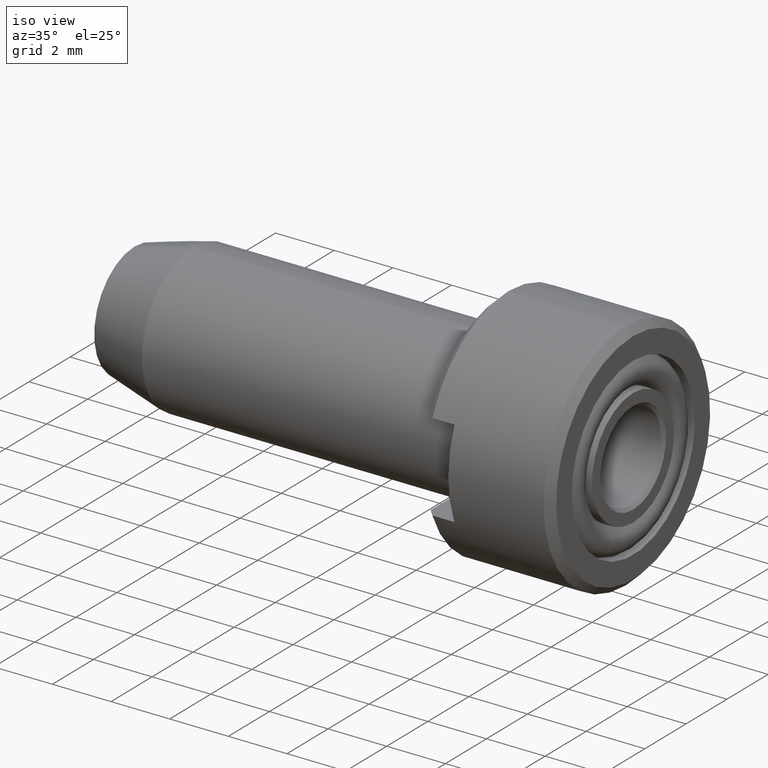
[diagram: clean part render]
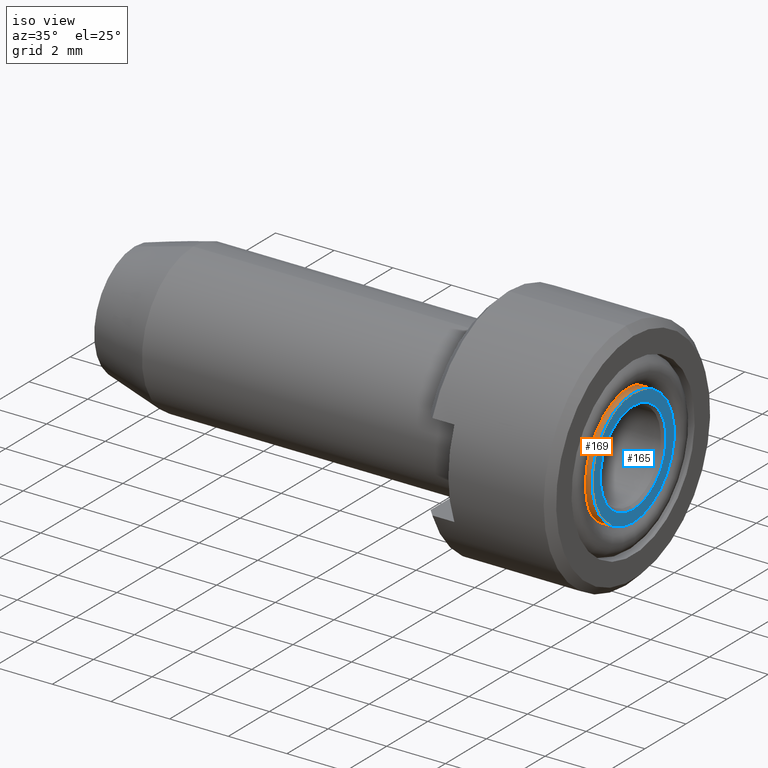
[diagram: same view with the hole feature highlighted: cylindrical wall and planar end face, labeled with their STEP entity ids]
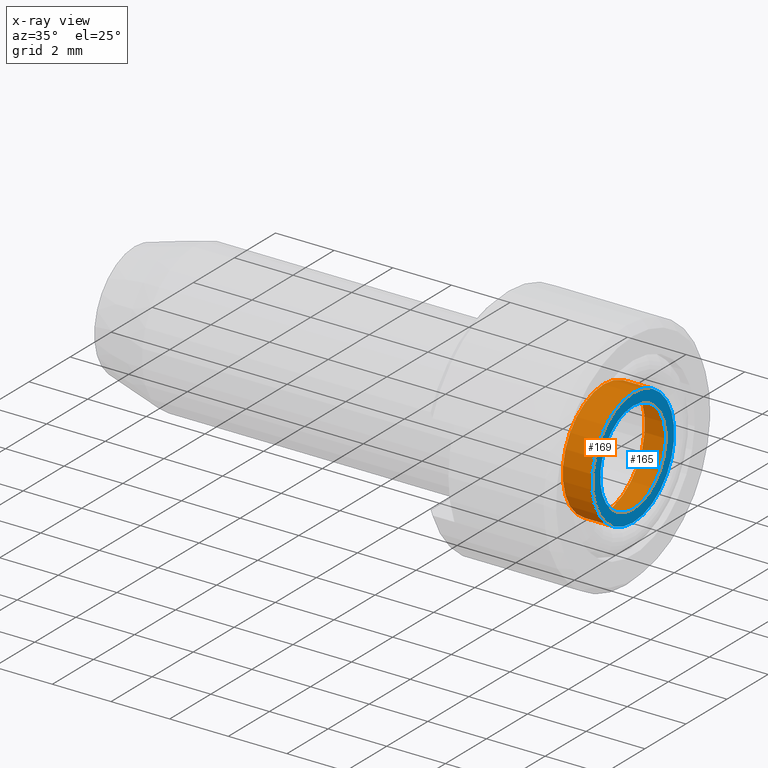
[diagram: x-ray of the same camera — body ghosted, the hole faces saturated]
A machine part, iso view. The highlighted faces form one hole feature of diameter 4 mm: the cylindrical wall (entity #169, orange) and its adjacent planar end face (entity #165, blue) — they share a circular edge in the B-rep.
The next image is the same camera in x-ray (body ghosted, the hole faces saturated) — the bore reads through the body.
Wall:
#169 = ADVANCED_FACE( '', ( #306, #307 ), #308, .T. );
#306 = FACE_OUTER_BOUND( '', #440, .T. );
#307 = FACE_OUTER_BOUND( '', #441, .T. );
#308 = CYLINDRICAL_SURFACE( '', #442, 2.00000000000000 );
#440 = EDGE_LOOP( '', ( #626 ) );
#441 = EDGE_LOOP( '', ( #627 ) );
#442 = AXIS2_PLACEMENT_3D( '', #628, #629, #630 );
#626 = ORIENTED_EDGE( '', *, *, #794, .T. );
#627 = ORIENTED_EDGE( '', *, *, #763, .F. );
#628 = CARTESIAN_POINT( '', ( -60.0000000000000, 0.000000000000000, 0.000000000000000 ) );
#629 = DIRECTION( '', ( 1.00000000000000, -0.000000000000000, -0.000000000000000 ) );
#630 = DIRECTION( '', ( 0.000000000000000, 0.000000000000000, 1.00000000000000 ) );
#763 = EDGE_CURVE( '', #859, #859, #860, .T. );
#794 = EDGE_CURVE( '', #908, #908, #909, .T. );
#859 = VERTEX_POINT( '', #990 );
#860 = CIRCLE( '', #991, 2.00000000000000 );
#908 = VERTEX_POINT( '', #1055 );
#909 = CIRCLE( '', #1056, 2.00000000000000 );
#990 = CARTESIAN_POINT( '', ( -1.00000000000000, 0.000000000000000, 2.00000000000000 ) );
#991 = AXIS2_PLACEMENT_3D( '', #1127, #1128, #1129 );
#1055 = CARTESIAN_POINT( '', ( 0.000000000000000, 0.000000000000000, 2.00000000000000 ) );
#1056 = AXIS2_PLACEMENT_3D( '', #1173, #1174, #1175 );
#1127 = CARTESIAN_POINT( '', ( -1.00000000000000, 0.000000000000000, 0.000000000000000 ) );
#1128 = DIRECTION( '', ( -1.00000000000000, 0.000000000000000, 0.000000000000000 ) );
#1129 = DIRECTION( '', ( 0.000000000000000, 0.000000000000000, 1.00000000000000 ) );
#1173 = CARTESIAN_POINT( '', ( 0.000000000000000, 0.000000000000000, 0.000000000000000 ) );
#1174 = DIRECTION( '', ( -1.00000000000000, 0.000000000000000, 0.000000000000000 ) );
#1175 = DIRECTION( '', ( 0.000000000000000, 0.000000000000000, 1.00000000000000 ) );
End face:
#165 = ADVANCED_FACE( '', ( #298, #299 ), #300, .T. );
#298 = FACE_BOUND( '', #432, .T. );
#299 = FACE_OUTER_BOUND( '', #433, .T. );
#300 = PLANE( '', #434 );
#432 = EDGE_LOOP( '', ( #614 ) );
#433 = EDGE_LOOP( '', ( #615 ) );
#434 = AXIS2_PLACEMENT_3D( '', #616, #617, #618 );
#614 = ORIENTED_EDGE( '', *, *, #793, .T. );
#615 = ORIENTED_EDGE( '', *, *, #794, .F. );
#616 = CARTESIAN_POINT( '', ( 0.000000000000000, 0.000000000000000, 2.00000000000000 ) );
#617 = DIRECTION( '', ( 1.00000000000000, 0.000000000000000, 0.000000000000000 ) );
#618 = DIRECTION( '', ( 0.000000000000000, 0.000000000000000, -1.00000000000000 ) );
#793 = EDGE_CURVE( '', #906, #906, #907, .F. );
#794 = EDGE_CURVE( '', #908, #908, #909, .T. );
#906 = VERTEX_POINT( '', #1053 );
#907 = CIRCLE( '', #1054, 1.60000000000000 );
#908 = VERTEX_POINT( '', #1055 );
#909 = CIRCLE( '', #1056, 2.00000000000000 );
#1053 = CARTESIAN_POINT( '', ( 0.000000000000000, 0.000000000000000, -1.60000000000000 ) );
#1054 = AXIS2_PLACEMENT_3D( '', #1170, #1171, #1172 );
#1055 = CARTESIAN_POINT( '', ( 0.000000000000000, 0.000000000000000, 2.00000000000000 ) );
#1056 = AXIS2_PLACEMENT_3D( '', #1173, #1174, #1175 );
#1170 = CARTESIAN_POINT( '', ( 0.000000000000000, 0.000000000000000, 0.000000000000000 ) );
#1171 = DIRECTION( '', ( 1.00000000000000, 0.000000000000000, 0.000000000000000 ) );
#1172 = DIRECTION( '', ( 0.000000000000000, 0.000000000000000, -1.00000000000000 ) );
#1173 = CARTESIAN_POINT( '', ( 0.000000000000000, 0.000000000000000, 0.000000000000000 ) );
#1174 = DIRECTION( '', ( -1.00000000000000, 0.000000000000000, 0.000000000000000 ) );
#1175 = DIRECTION( '', ( 0.000000000000000, 0.000000000000000, 1.00000000000000 ) );